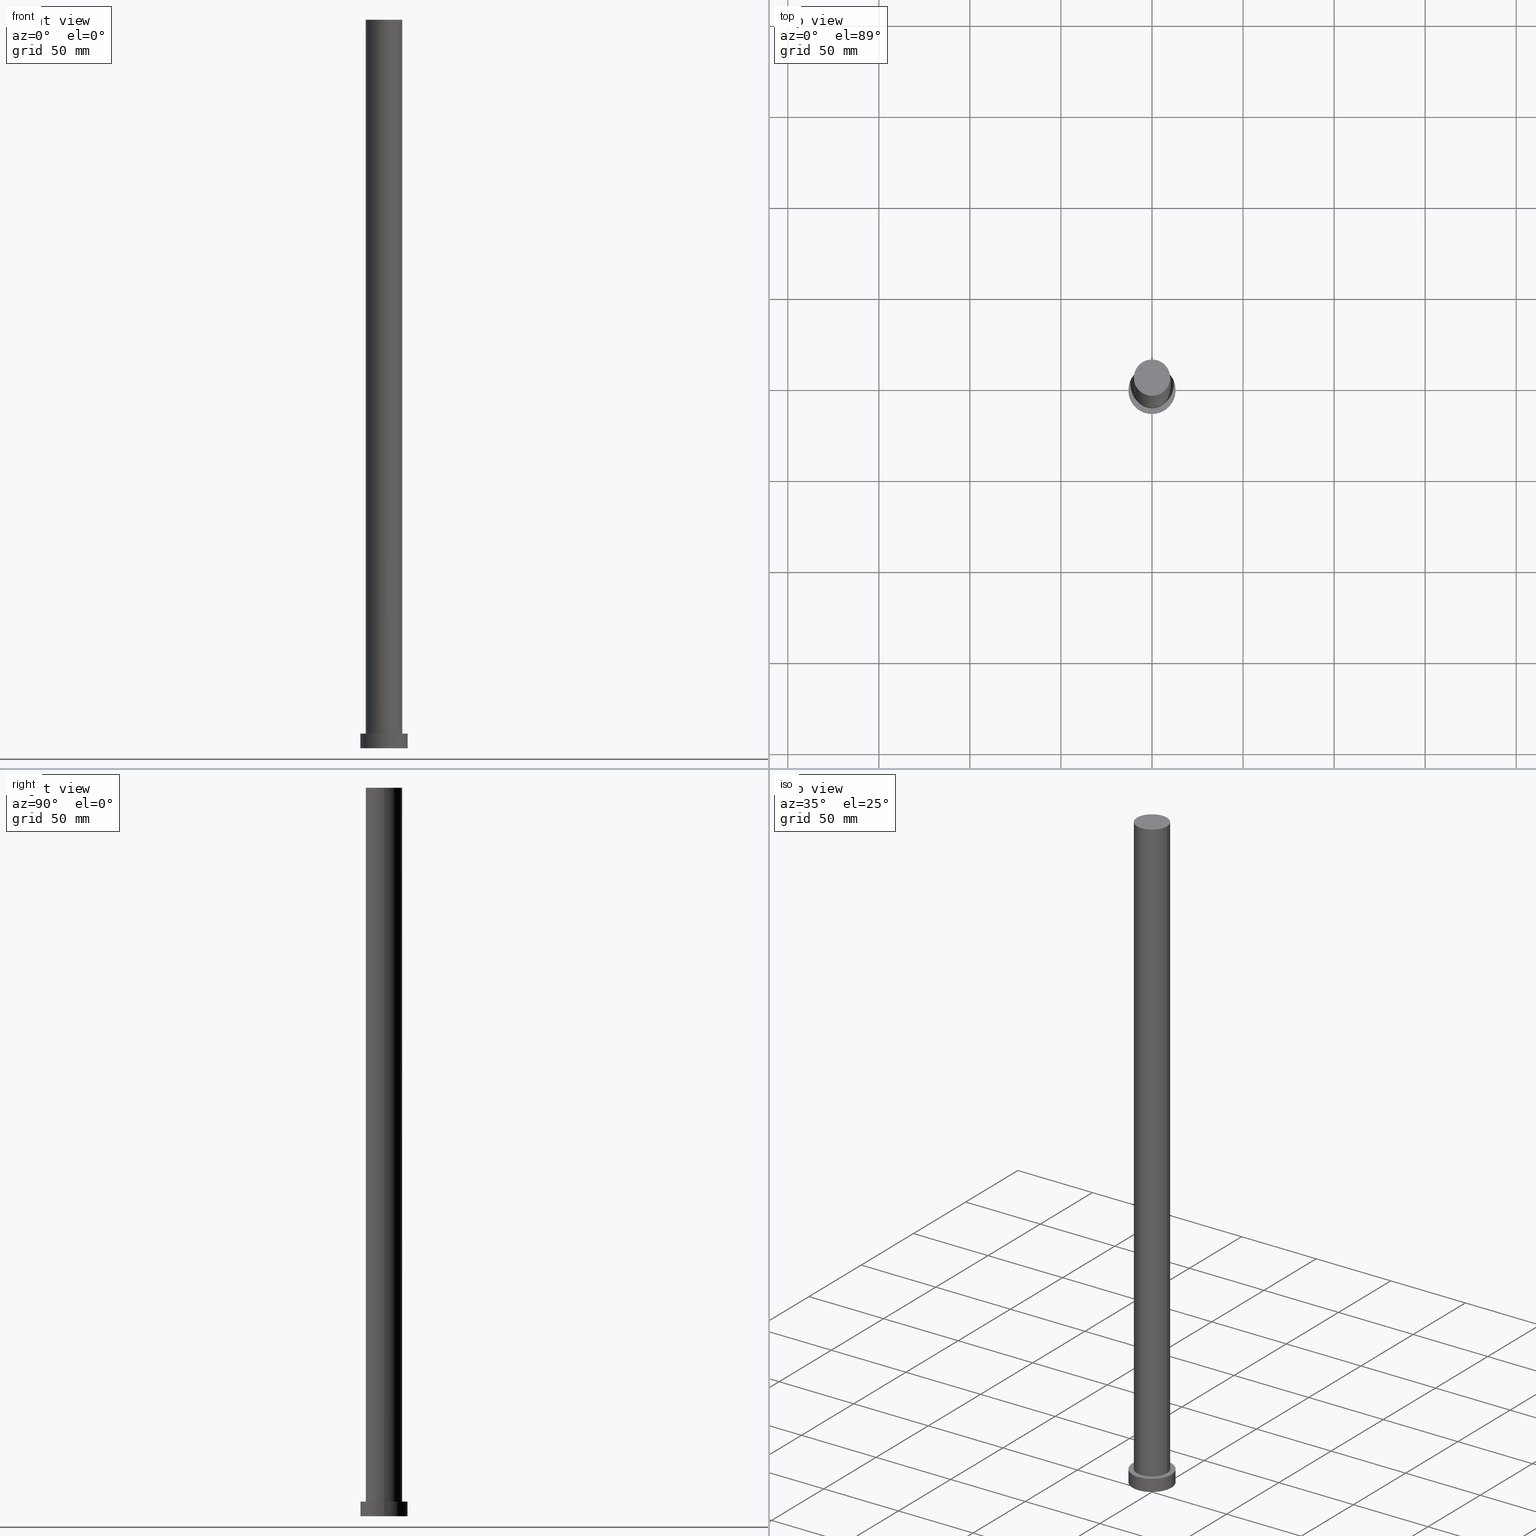
[diagram: canonical four-view strip — front | top / right | iso, engineering-drawing reading convention]
A machine part, canonical four-view strip (front | top / right | iso — engineering-drawing reading convention). The complete STEP part file that produces these views, byte-faithful:
ISO-10303-21;
HEADER;
FILE_DESCRIPTION (( 'STEP AP203' ),
    '1' );
FILE_NAME ('ed83.STEP',
    '2023-02-12T10:32:19',
    ( '' ),
    ( '' ),
    'SwSTEP 2.0',
    'SolidWorks 2019',
    '' );
FILE_SCHEMA (( 'CONFIG_CONTROL_DESIGN' ));
ENDSEC;

DATA;
#1 = DIRECTION ( 'NONE',  ( -0.000000000000000000, -0.000000000000000000, -1.000000000000000000 ) ) ;
#2 = CC_DESIGN_APPROVAL ( #95, ( #161 ) ) ;
#3 = PERSON_AND_ORGANIZATION ( #16, #33 ) ;
#4 = APPROVAL_STATUS ( 'not_yet_approved' ) ;
#5 = LINE ( 'NONE', #121, #241 ) ;
#6 = ORIENTED_EDGE ( 'NONE', *, *, #89, .T. ) ;
#7 = CIRCLE ( 'NONE', #157, 13.00000000000000178 ) ;
#8 = ORIENTED_EDGE ( 'NONE', *, *, #10, .T. ) ;
#9 = DIRECTION ( 'NONE',  ( 1.000000000000000000, 0.000000000000000000, 0.000000000000000000 ) ) ;
#10 = EDGE_CURVE ( 'NONE', #106, #205, #84, .T. ) ;
#11 = LOCAL_TIME ( 11, 32, 19.00000000000000000, #42 ) ;
#12 = ORIENTED_EDGE ( 'NONE', *, *, #141, .F. ) ;
#13 = APPLICATION_CONTEXT ( 'configuration controlled 3d designs of mechanical parts and assemblies' ) ;
#14 = CARTESIAN_POINT ( 'NONE',  ( 0.000000000000000000, 0.000000000000000000, 0.000000000000000000 ) ) ;
#15 = DIRECTION ( 'NONE',  ( 0.000000000000000000, 0.000000000000000000, 1.000000000000000000 ) ) ;
#16 = PERSON ( 'NEUR�EN�', 'NEUR�EN�', 'NEUR�EN�', ('NEUR�EN�'), ('NEUR�EN�'), ('NEUR�EN�') ) ;
#17 = DIRECTION ( 'NONE',  ( 0.000000000000000000, 0.000000000000000000, 1.000000000000000000 ) ) ;
#18 = CARTESIAN_POINT ( 'NONE',  ( -10.00000000000000000, 0.000000000000000000, 8.000000000000000000 ) ) ;
#19 = CARTESIAN_POINT ( 'NONE',  ( 13.00000000000000178, 1.592040838891559293E-15, 8.000000000000000000 ) ) ;
#20 = DIRECTION ( 'NONE',  ( 0.000000000000000000, 0.000000000000000000, 1.000000000000000000 ) ) ;
#21 = AXIS2_PLACEMENT_3D ( 'NONE', #119, #124, #102 ) ;
#22 = PLANE ( 'NONE',  #21 ) ;
#23 = EDGE_CURVE ( 'NONE', #92, #71, #170, .T. ) ;
#24 = EDGE_LOOP ( 'NONE', ( #150, #67 ) ) ;
#25 = APPLICATION_CONTEXT ( 'configuration controlled 3d designs of mechanical parts and assemblies' ) ;
#26 = PRODUCT_DEFINITION ( 'NEZN�M�', '', #161, #76 ) ;
#27 = MANIFOLD_SOLID_BREP ( 'P�idat vysunut�m3', #35 ) ;
#28 = VERTEX_POINT ( 'NONE', #82 ) ;
#29 = CARTESIAN_POINT ( 'NONE',  ( 0.000000000000000000, 0.000000000000000000, 0.000000000000000000 ) ) ;
#30 = LINE ( 'NONE', #113, #78 ) ;
#31 = DATE_AND_TIME ( #210, #179 ) ;
#32 = CARTESIAN_POINT ( 'NONE',  ( 0.000000000000000000, 0.000000000000000000, 8.000000000000000000 ) ) ;
#33 = ORGANIZATION ( 'NEUR�EN�', 'NEUR�EN�', '' ) ;
#34 = COORDINATED_UNIVERSAL_TIME_OFFSET ( 1, 0, .AHEAD. ) ;
#35 = CLOSED_SHELL ( 'NONE', ( #73, #201, #218, #65, #126, #37, #246 ) ) ;
#36 = CYLINDRICAL_SURFACE ( 'NONE', #217, 13.00000000000000178 ) ;
#37 = ADVANCED_FACE ( 'NONE', ( #190 ), #160, .T. ) ;
#38 = CARTESIAN_POINT ( 'NONE',  ( -13.00000000000000178, 0.000000000000000000, 0.000000000000000000 ) ) ;
#39 = DATE_TIME_ROLE ( 'classification_date' ) ;
#40 = PERSON_AND_ORGANIZATION_ROLE ( 'creator' ) ;
#41 = DATE_AND_TIME ( #219, #11 ) ;
#42 = COORDINATED_UNIVERSAL_TIME_OFFSET ( 1, 0, .AHEAD. ) ;
#43 =( NAMED_UNIT ( * ) SI_UNIT ( $, .STERADIAN. ) SOLID_ANGLE_UNIT ( ) );
#44 = LOCAL_TIME ( 11, 32, 19.00000000000000000, #85 ) ;
#45 = CC_DESIGN_PERSON_AND_ORGANIZATION_ASSIGNMENT ( #60, #40, ( #26 ) ) ;
#46 = EDGE_CURVE ( 'NONE', #71, #203, #249, .T. ) ;
#47 = ORIENTED_EDGE ( 'NONE', *, *, #191, .F. ) ;
#48 = ORIENTED_EDGE ( 'NONE', *, *, #244, .F. ) ;
#49 = ORIENTED_EDGE ( 'NONE', *, *, #89, .F. ) ;
#50 = DIRECTION ( 'NONE',  ( -1.000000000000000000, 0.000000000000000000, 0.000000000000000000 ) ) ;
#51 = AXIS2_PLACEMENT_3D ( 'NONE', #29, #17, #229 ) ;
#52 = CYLINDRICAL_SURFACE ( 'NONE', #58, 10.00000000000000000 ) ;
#53 = CYLINDRICAL_SURFACE ( 'NONE', #204, 13.00000000000000178 ) ;
#54 = SECURITY_CLASSIFICATION_LEVEL ( 'unclassified' ) ;
#55 = DIRECTION ( 'NONE',  ( 1.000000000000000000, 0.000000000000000000, -0.000000000000000000 ) ) ;
#56 = APPROVAL_PERSON_ORGANIZATION ( #104, #228, #199 ) ;
#57 = AXIS2_PLACEMENT_3D ( 'NONE', #209, #15, #255 ) ;
#58 = AXIS2_PLACEMENT_3D ( 'NONE', #254, #96, #251 ) ;
#59 = DIRECTION ( 'NONE',  ( -0.000000000000000000, -0.000000000000000000, -1.000000000000000000 ) ) ;
#60 = PERSON_AND_ORGANIZATION ( #16, #33 ) ;
#61 = APPROVAL_STATUS ( 'not_yet_approved' ) ;
#62 = APPLICATION_PROTOCOL_DEFINITION ( 'international standard', 'config_control_design', 1994, #25 ) ;
#63 = CARTESIAN_POINT ( 'NONE',  ( 0.000000000000000000, 0.000000000000000000, 0.000000000000000000 ) ) ;
#64 = CC_DESIGN_PERSON_AND_ORGANIZATION_ASSIGNMENT ( #214, #117, ( #161 ) ) ;
#65 = ADVANCED_FACE ( 'NONE', ( #195, #97 ), #134, .T. ) ;
#66 = APPROVAL_PERSON_ORGANIZATION ( #81, #194, #77 ) ;
#67 = ORIENTED_EDGE ( 'NONE', *, *, #46, .F. ) ;
#68 = CARTESIAN_POINT ( 'NONE',  ( 0.000000000000000000, 0.000000000000000000, 400.0000000000000000 ) ) ;
#69 = ORIENTED_EDGE ( 'NONE', *, *, #109, .T. ) ;
#70 = VECTOR ( 'NONE', #59, 1000.000000000000000 ) ;
#71 = VERTEX_POINT ( 'NONE', #133 ) ;
#72 = PLANE ( 'NONE',  #57 ) ;
#73 = ADVANCED_FACE ( 'NONE', ( #131 ), #52, .T. ) ;
#74 = CARTESIAN_POINT ( 'NONE',  ( 10.00000000000000000, 1.224646799147353256E-15, 400.0000000000000000 ) ) ;
#75 = CIRCLE ( 'NONE', #155, 10.00000000000000000 ) ;
#76 = DESIGN_CONTEXT ( 'detailed design', #25, 'design' ) ;
#77 = APPROVAL_ROLE ( '' ) ;
#78 = VECTOR ( 'NONE', #116, 1000.000000000000000 ) ;
#79 = DIRECTION ( 'NONE',  ( -0.000000000000000000, -0.000000000000000000, -1.000000000000000000 ) ) ;
#80 = DIRECTION ( 'NONE',  ( 1.000000000000000000, 0.000000000000000000, 0.000000000000000000 ) ) ;
#81 = PERSON_AND_ORGANIZATION ( #16, #33 ) ;
#82 = CARTESIAN_POINT ( 'NONE',  ( 10.00000000000000000, 1.224646799147353256E-15, 8.000000000000000000 ) ) ;
#83 = DATE_AND_TIME ( #212, #206 ) ;
#84 = CIRCLE ( 'NONE', #222, 10.00000000000000000 ) ;
#85 = COORDINATED_UNIVERSAL_TIME_OFFSET ( 1, 0, .AHEAD. ) ;
#86 = MECHANICAL_CONTEXT ( 'NONE', #13, 'mechanical' ) ;
#87 =( GEOMETRIC_REPRESENTATION_CONTEXT ( 3 ) GLOBAL_UNCERTAINTY_ASSIGNED_CONTEXT ( ( #90 ) ) GLOBAL_UNIT_ASSIGNED_CONTEXT ( ( #184, #198, #43 ) ) REPRESENTATION_CONTEXT ( 'NONE', 'WORKASPACE' ) );
#88 = CARTESIAN_POINT ( 'NONE',  ( -13.00000000000000178, 0.000000000000000000, 8.000000000000000000 ) ) ;
#89 = EDGE_CURVE ( 'NONE', #92, #245, #173, .T. ) ;
#90 = UNCERTAINTY_MEASURE_WITH_UNIT (LENGTH_MEASURE( 1.000000000000000082E-05 ), #184, 'distance_accuracy_value', 'NONE');
#91 = ORIENTED_EDGE ( 'NONE', *, *, #23, .T. ) ;
#92 = VERTEX_POINT ( 'NONE', #174 ) ;
#93 = CC_DESIGN_APPROVAL ( #228, ( #26 ) ) ;
#94 = ORIENTED_EDGE ( 'NONE', *, *, #177, .F. ) ;
#95 = APPROVAL ( #4, 'NEUR�EN�' ) ;
#96 = DIRECTION ( 'NONE',  ( -0.000000000000000000, -0.000000000000000000, -1.000000000000000000 ) ) ;
#97 = FACE_OUTER_BOUND ( 'NONE', #250, .T. ) ;
#98 = DIRECTION ( 'NONE',  ( 0.000000000000000000, 0.000000000000000000, 1.000000000000000000 ) ) ;
#99 = CARTESIAN_POINT ( 'NONE',  ( 0.000000000000000000, 0.000000000000000000, 8.000000000000000000 ) ) ;
#100 = DIRECTION ( 'NONE',  ( 0.000000000000000000, 0.000000000000000000, 1.000000000000000000 ) ) ;
#101 = CC_DESIGN_APPROVAL ( #194, ( #146 ) ) ;
#102 = DIRECTION ( 'NONE',  ( 1.000000000000000000, 0.000000000000000000, -0.000000000000000000 ) ) ;
#103 = PRODUCT_RELATED_PRODUCT_CATEGORY ( 'detail', '', ( #129 ) ) ;
#104 = PERSON_AND_ORGANIZATION ( #16, #33 ) ;
#105 = EDGE_LOOP ( 'NONE', ( #47, #168 ) ) ;
#106 = VERTEX_POINT ( 'NONE', #74 ) ;
#107 = LOCAL_TIME ( 11, 32, 19.00000000000000000, #132 ) ;
#108 = ORIENTED_EDGE ( 'NONE', *, *, #163, .T. ) ;
#109 = EDGE_CURVE ( 'NONE', #106, #28, #213, .T. ) ;
#110 = AXIS2_PLACEMENT_3D ( 'NONE', #207, #1, #114 ) ;
#111 = CARTESIAN_POINT ( 'NONE',  ( 0.000000000000000000, 0.000000000000000000, 8.000000000000000000 ) ) ;
#112 = SHAPE_DEFINITION_REPRESENTATION ( #136, #123 ) ;
#113 = CARTESIAN_POINT ( 'NONE',  ( -10.00000000000000000, 0.000000000000000000, 400.0000000000000000 ) ) ;
#114 = DIRECTION ( 'NONE',  ( -1.000000000000000000, 0.000000000000000000, 0.000000000000000000 ) ) ;
#115 = PERSON_AND_ORGANIZATION ( #16, #33 ) ;
#116 = DIRECTION ( 'NONE',  ( -0.000000000000000000, -0.000000000000000000, -1.000000000000000000 ) ) ;
#117 = PERSON_AND_ORGANIZATION_ROLE ( 'creator' ) ;
#118 = FACE_OUTER_BOUND ( 'NONE', #151, .T. ) ;
#119 = CARTESIAN_POINT ( 'NONE',  ( 0.000000000000000000, 0.000000000000000000, 400.0000000000000000 ) ) ;
#120 = CIRCLE ( 'NONE', #187, 10.00000000000000000 ) ;
#121 = CARTESIAN_POINT ( 'NONE',  ( -13.00000000000000178, 0.000000000000000000, 8.000000000000000000 ) ) ;
#122 = DATE_TIME_ROLE ( 'creation_date' ) ;
#123 = ADVANCED_BREP_SHAPE_REPRESENTATION ( 'ed83', ( #27, #224 ), #87 ) ;
#124 = DIRECTION ( 'NONE',  ( 0.000000000000000000, 0.000000000000000000, 1.000000000000000000 ) ) ;
#125 = ORIENTED_EDGE ( 'NONE', *, *, #109, .F. ) ;
#126 = ADVANCED_FACE ( 'NONE', ( #156 ), #72, .F. ) ;
#127 = ORIENTED_EDGE ( 'NONE', *, *, #23, .F. ) ;
#128 = EDGE_LOOP ( 'NONE', ( #248, #8 ) ) ;
#129 = PRODUCT ( 'ed83', 'ed83', '', ( #86 ) ) ;
#130 = CC_DESIGN_SECURITY_CLASSIFICATION ( #146, ( #161 ) ) ;
#131 = FACE_OUTER_BOUND ( 'NONE', #189, .T. ) ;
#132 = COORDINATED_UNIVERSAL_TIME_OFFSET ( 1, 0, .AHEAD. ) ;
#133 = CARTESIAN_POINT ( 'NONE',  ( 13.00000000000000178, 1.592040838891559293E-15, 0.000000000000000000 ) ) ;
#134 = PLANE ( 'NONE',  #139 ) ;
#135 = APPROVAL_STATUS ( 'not_yet_approved' ) ;
#136 = PRODUCT_DEFINITION_SHAPE ( 'NONE', 'NONE',  #26 ) ;
#137 = AXIS2_PLACEMENT_3D ( 'NONE', #144, #20, #180 ) ;
#138 = DIRECTION ( 'NONE',  ( 0.000000000000000000, 0.000000000000000000, 1.000000000000000000 ) ) ;
#139 = AXIS2_PLACEMENT_3D ( 'NONE', #99, #176, #55 ) ;
#140 = DIRECTION ( 'NONE',  ( 1.000000000000000000, 0.000000000000000000, 0.000000000000000000 ) ) ;
#141 = EDGE_CURVE ( 'NONE', #205, #169, #30, .T. ) ;
#142 = DIRECTION ( 'NONE',  ( -0.000000000000000000, -0.000000000000000000, -1.000000000000000000 ) ) ;
#143 = APPROVAL_DATE_TIME ( #238, #228 ) ;
#144 = CARTESIAN_POINT ( 'NONE',  ( 0.000000000000000000, 0.000000000000000000, 400.0000000000000000 ) ) ;
#145 = APPLICATION_PROTOCOL_DEFINITION ( 'international standard', 'config_control_design', 1994, #13 ) ;
#146 = SECURITY_CLASSIFICATION ( '', '', #54 ) ;
#147 = EDGE_LOOP ( 'NONE', ( #49, #91, #202, #48 ) ) ;
#148 = CC_DESIGN_PERSON_AND_ORGANIZATION_ASSIGNMENT ( #154, #237, ( #146 ) ) ;
#149 = EDGE_LOOP ( 'NONE', ( #125, #172, #186, #247 ) ) ;
#150 = ORIENTED_EDGE ( 'NONE', *, *, #163, .F. ) ;
#151 = EDGE_LOOP ( 'NONE', ( #127, #94, #223, #108 ) ) ;
#152 = ORIENTED_EDGE ( 'NONE', *, *, #177, .T. ) ;
#153 = DIRECTION ( 'NONE',  ( -0.000000000000000000, -0.000000000000000000, -1.000000000000000000 ) ) ;
#154 = PERSON_AND_ORGANIZATION ( #16, #33 ) ;
#155 = AXIS2_PLACEMENT_3D ( 'NONE', #111, #175, #80 ) ;
#156 = FACE_OUTER_BOUND ( 'NONE', #24, .T. ) ;
#157 = AXIS2_PLACEMENT_3D ( 'NONE', #235, #98, #211 ) ;
#158 = DIRECTION ( 'NONE',  ( 1.000000000000000000, 0.000000000000000000, 0.000000000000000000 ) ) ;
#159 = APPROVAL_DATE_TIME ( #216, #95 ) ;
#160 = CYLINDRICAL_SURFACE ( 'NONE', #110, 10.00000000000000000 ) ;
#161 = PRODUCT_DEFINITION_FORMATION_WITH_SPECIFIED_SOURCE ( 'LIBOVOLN�', '', #129, .NOT_KNOWN. ) ;
#162 = DIRECTION ( 'NONE',  ( -1.000000000000000000, 0.000000000000000000, 0.000000000000000000 ) ) ;
#163 = EDGE_CURVE ( 'NONE', #203, #71, #200, .T. ) ;
#164 = CC_DESIGN_PERSON_AND_ORGANIZATION_ASSIGNMENT ( #3, #242, ( #129 ) ) ;
#165 = CALENDAR_DATE ( 2023, 12, 2 ) ;
#166 = DIRECTION ( 'NONE',  ( 1.000000000000000000, 0.000000000000000000, 0.000000000000000000 ) ) ;
#167 = CC_DESIGN_DATE_AND_TIME_ASSIGNMENT ( #31, #39, ( #146 ) ) ;
#168 = ORIENTED_EDGE ( 'NONE', *, *, #185, .F. ) ;
#169 = VERTEX_POINT ( 'NONE', #18 ) ;
#170 = LINE ( 'NONE', #19, #70 ) ;
#171 = AXIS2_PLACEMENT_3D ( 'NONE', #215, #138, #158 ) ;
#172 = ORIENTED_EDGE ( 'NONE', *, *, #220, .F. ) ;
#173 = CIRCLE ( 'NONE', #171, 13.00000000000000178 ) ;
#174 = CARTESIAN_POINT ( 'NONE',  ( 13.00000000000000178, 1.592040838891559293E-15, 8.000000000000000000 ) ) ;
#175 = DIRECTION ( 'NONE',  ( 0.000000000000000000, 0.000000000000000000, 1.000000000000000000 ) ) ;
#176 = DIRECTION ( 'NONE',  ( 0.000000000000000000, 0.000000000000000000, 1.000000000000000000 ) ) ;
#177 = EDGE_CURVE ( 'NONE', #245, #92, #7, .T. ) ;
#178 = CARTESIAN_POINT ( 'NONE',  ( 0.000000000000000000, 0.000000000000000000, 8.000000000000000000 ) ) ;
#179 = LOCAL_TIME ( 11, 32, 19.00000000000000000, #34 ) ;
#180 = DIRECTION ( 'NONE',  ( 1.000000000000000000, 0.000000000000000000, 0.000000000000000000 ) ) ;
#181 = VECTOR ( 'NONE', #79, 1000.000000000000000 ) ;
#182 = DIRECTION ( 'NONE',  ( 0.000000000000000000, 0.000000000000000000, 1.000000000000000000 ) ) ;
#183 = CIRCLE ( 'NONE', #137, 10.00000000000000000 ) ;
#184 =( LENGTH_UNIT ( ) NAMED_UNIT ( * ) SI_UNIT ( .MILLI., .METRE. ) );
#185 = EDGE_CURVE ( 'NONE', #28, #169, #120, .T. ) ;
#186 = ORIENTED_EDGE ( 'NONE', *, *, #141, .T. ) ;
#187 = AXIS2_PLACEMENT_3D ( 'NONE', #32, #192, #140 ) ;
#188 = ORIENTED_EDGE ( 'NONE', *, *, #185, .T. ) ;
#189 = EDGE_LOOP ( 'NONE', ( #225, #69, #188, #12 ) ) ;
#190 = FACE_OUTER_BOUND ( 'NONE', #149, .T. ) ;
#191 = EDGE_CURVE ( 'NONE', #169, #28, #75, .T. ) ;
#192 = DIRECTION ( 'NONE',  ( 0.000000000000000000, 0.000000000000000000, 1.000000000000000000 ) ) ;
#193 = CARTESIAN_POINT ( 'NONE',  ( 10.00000000000000000, 1.224646799147353256E-15, 400.0000000000000000 ) ) ;
#194 = APPROVAL ( #135, 'NEUR�EN�' ) ;
#195 = FACE_BOUND ( 'NONE', #105, .T. ) ;
#196 = PERSON_AND_ORGANIZATION_ROLE ( 'design_supplier' ) ;
#197 = CARTESIAN_POINT ( 'NONE',  ( 0.000000000000000000, 0.000000000000000000, 8.000000000000000000 ) ) ;
#198 =( NAMED_UNIT ( * ) PLANE_ANGLE_UNIT ( ) SI_UNIT ( $, .RADIAN. ) );
#199 = APPROVAL_ROLE ( '' ) ;
#200 = CIRCLE ( 'NONE', #51, 13.00000000000000178 ) ;
#201 = ADVANCED_FACE ( 'NONE', ( #231 ), #36, .T. ) ;
#202 = ORIENTED_EDGE ( 'NONE', *, *, #46, .T. ) ;
#203 = VERTEX_POINT ( 'NONE', #38 ) ;
#204 = AXIS2_PLACEMENT_3D ( 'NONE', #197, #153, #50 ) ;
#205 = VERTEX_POINT ( 'NONE', #232 ) ;
#206 = LOCAL_TIME ( 11, 32, 19.00000000000000000, #230 ) ;
#207 = CARTESIAN_POINT ( 'NONE',  ( 0.000000000000000000, 0.000000000000000000, 400.0000000000000000 ) ) ;
#208 = APPROVAL_DATE_TIME ( #83, #194 ) ;
#209 = CARTESIAN_POINT ( 'NONE',  ( 0.000000000000000000, 0.000000000000000000, 0.000000000000000000 ) ) ;
#210 = CALENDAR_DATE ( 2023, 12, 2 ) ;
#211 = DIRECTION ( 'NONE',  ( 1.000000000000000000, 0.000000000000000000, 0.000000000000000000 ) ) ;
#212 = CALENDAR_DATE ( 2023, 12, 2 ) ;
#213 = LINE ( 'NONE', #193, #181 ) ;
#214 = PERSON_AND_ORGANIZATION ( #16, #33 ) ;
#215 = CARTESIAN_POINT ( 'NONE',  ( 0.000000000000000000, 0.000000000000000000, 8.000000000000000000 ) ) ;
#216 = DATE_AND_TIME ( #233, #107 ) ;
#217 = AXIS2_PLACEMENT_3D ( 'NONE', #178, #252, #162 ) ;
#218 = ADVANCED_FACE ( 'NONE', ( #118 ), #53, .T. ) ;
#219 = CALENDAR_DATE ( 2023, 12, 2 ) ;
#220 = EDGE_CURVE ( 'NONE', #205, #106, #183, .T. ) ;
#221 = APPROVAL_PERSON_ORGANIZATION ( #243, #95, #253 ) ;
#222 = AXIS2_PLACEMENT_3D ( 'NONE', #68, #226, #9 ) ;
#223 = ORIENTED_EDGE ( 'NONE', *, *, #244, .T. ) ;
#224 = AXIS2_PLACEMENT_3D ( 'NONE', #63, #182, #166 ) ;
#225 = ORIENTED_EDGE ( 'NONE', *, *, #10, .F. ) ;
#226 = DIRECTION ( 'NONE',  ( 0.000000000000000000, 0.000000000000000000, 1.000000000000000000 ) ) ;
#227 = CC_DESIGN_DATE_AND_TIME_ASSIGNMENT ( #41, #122, ( #26 ) ) ;
#228 = APPROVAL ( #61, 'NEUR�EN�' ) ;
#229 = DIRECTION ( 'NONE',  ( 1.000000000000000000, 0.000000000000000000, 0.000000000000000000 ) ) ;
#230 = COORDINATED_UNIVERSAL_TIME_OFFSET ( 1, 0, .AHEAD. ) ;
#231 = FACE_OUTER_BOUND ( 'NONE', #147, .T. ) ;
#232 = CARTESIAN_POINT ( 'NONE',  ( -10.00000000000000000, 0.000000000000000000, 400.0000000000000000 ) ) ;
#233 = CALENDAR_DATE ( 2023, 12, 2 ) ;
#234 = DIRECTION ( 'NONE',  ( 1.000000000000000000, 0.000000000000000000, 0.000000000000000000 ) ) ;
#235 = CARTESIAN_POINT ( 'NONE',  ( 0.000000000000000000, 0.000000000000000000, 8.000000000000000000 ) ) ;
#236 = AXIS2_PLACEMENT_3D ( 'NONE', #14, #100, #234 ) ;
#237 = PERSON_AND_ORGANIZATION_ROLE ( 'classification_officer' ) ;
#238 = DATE_AND_TIME ( #165, #44 ) ;
#239 = CC_DESIGN_PERSON_AND_ORGANIZATION_ASSIGNMENT ( #115, #196, ( #161 ) ) ;
#240 = FACE_OUTER_BOUND ( 'NONE', #128, .T. ) ;
#241 = VECTOR ( 'NONE', #142, 1000.000000000000000 ) ;
#242 = PERSON_AND_ORGANIZATION_ROLE ( 'design_owner' ) ;
#243 = PERSON_AND_ORGANIZATION ( #16, #33 ) ;
#244 = EDGE_CURVE ( 'NONE', #245, #203, #5, .T. ) ;
#245 = VERTEX_POINT ( 'NONE', #88 ) ;
#246 = ADVANCED_FACE ( 'NONE', ( #240 ), #22, .T. ) ;
#247 = ORIENTED_EDGE ( 'NONE', *, *, #191, .T. ) ;
#248 = ORIENTED_EDGE ( 'NONE', *, *, #220, .T. ) ;
#249 = CIRCLE ( 'NONE', #236, 13.00000000000000178 ) ;
#250 = EDGE_LOOP ( 'NONE', ( #152, #6 ) ) ;
#251 = DIRECTION ( 'NONE',  ( -1.000000000000000000, 0.000000000000000000, 0.000000000000000000 ) ) ;
#252 = DIRECTION ( 'NONE',  ( -0.000000000000000000, -0.000000000000000000, -1.000000000000000000 ) ) ;
#253 = APPROVAL_ROLE ( '' ) ;
#254 = CARTESIAN_POINT ( 'NONE',  ( 0.000000000000000000, 0.000000000000000000, 400.0000000000000000 ) ) ;
#255 = DIRECTION ( 'NONE',  ( 1.000000000000000000, 0.000000000000000000, -0.000000000000000000 ) ) ;
ENDSEC;
END-ISO-10303-21;
